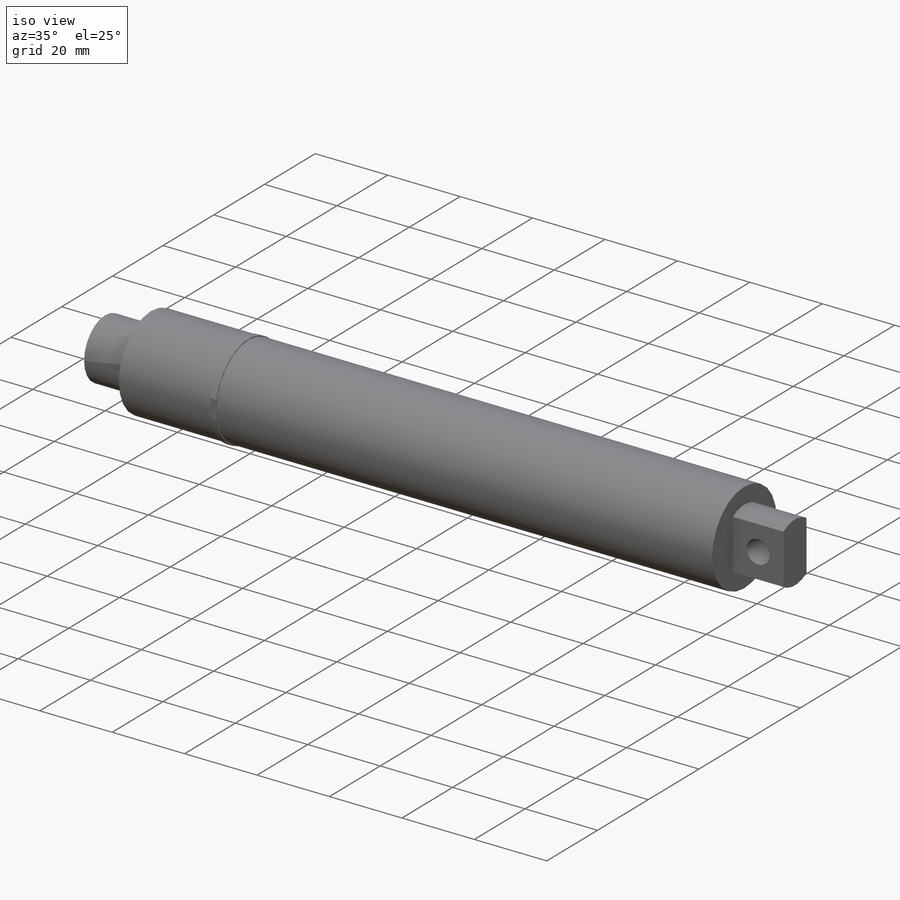
[diagram: iso view]
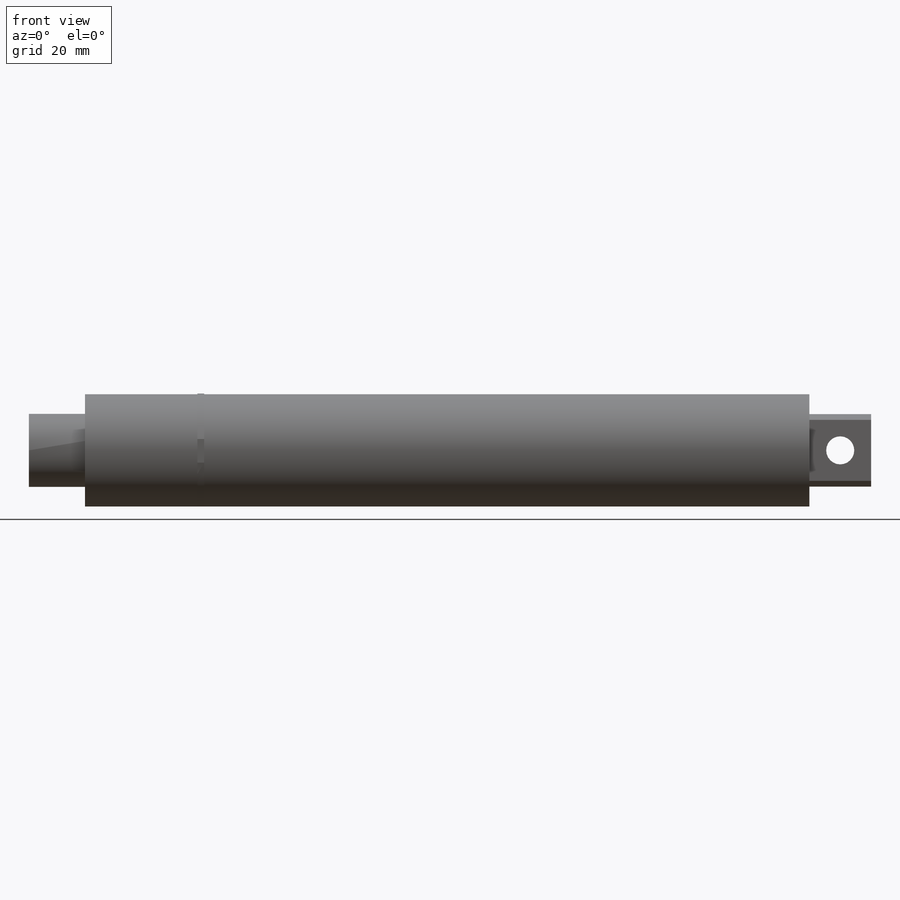
[diagram: front view]
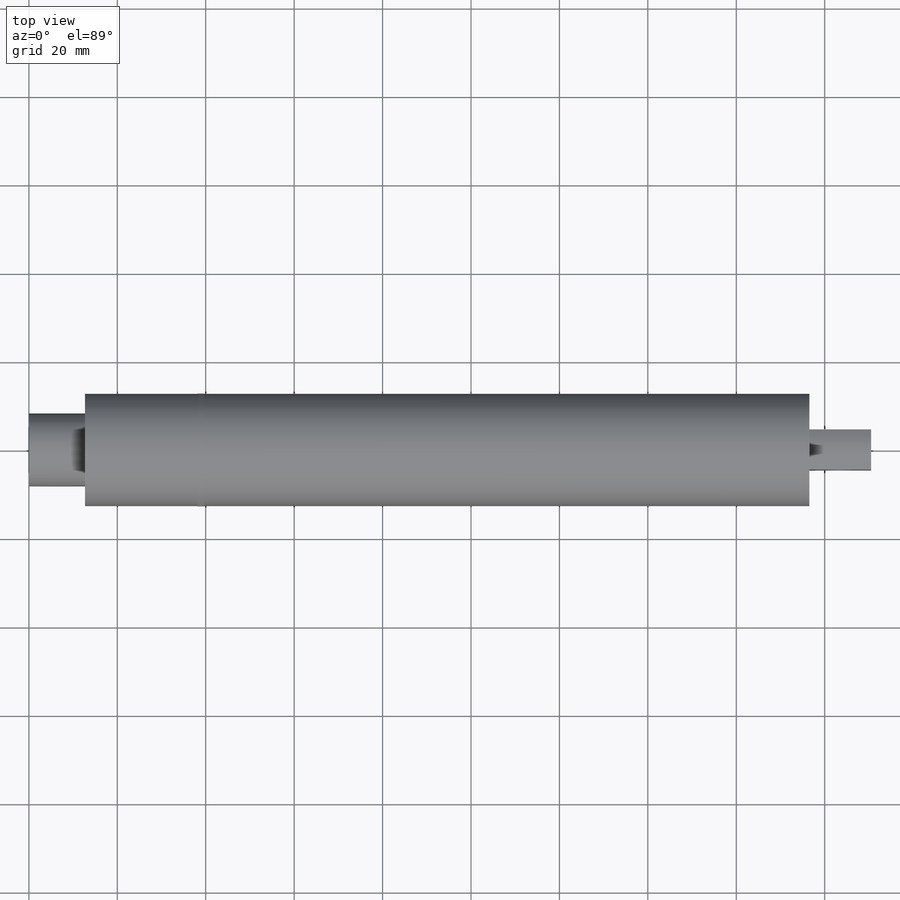
[diagram: top view]
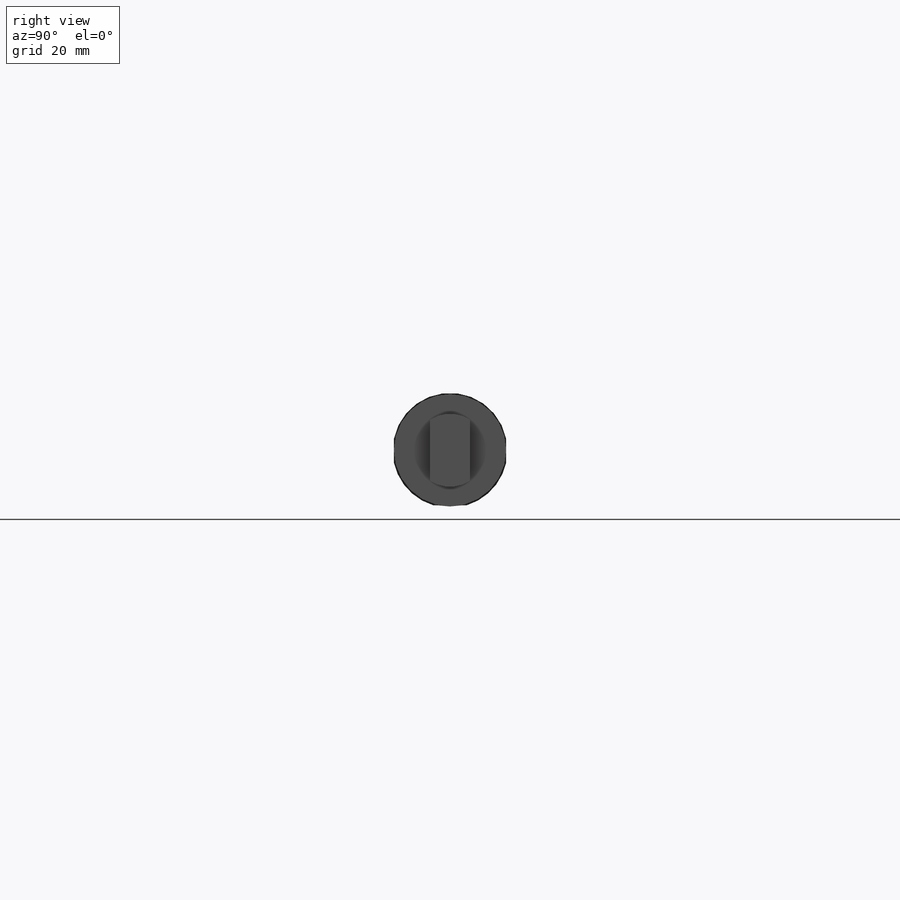
[diagram: right view]
SOLIDWORKS PART (.sldprt)
format: sldprt  version: not decoded by parser v0  size: 236,032 bytes
history: native  units: mm
features: sketch x10, cut_extrude x8, plane x5, extrude x2, material x1 (+8 scaffold rows collapsed)
feature tree (34):
  scaffold x8  (default folders/planes/origin — collapsed)
  material  "Material <sin especificar>"
  plane  "Alzado"
  plane  "Planta"
  plane  "Vista lateral"
  sketch  "Croquis2"  dims[D1=25.4mm]
  extrude  "Saliente-Extruir1"  Depth=190.5mm
  sketch  "Croquis3"  dims[D1=16.51mm D2=25.4mm]
  cut_extrude  "Cortar-Extruir1"  Depth=12.7mm
  sketch  "Croquis4"  dims[D1=5.08mm]
  cut_extrude  "Cortar-Extruir2"  Depth=170.18mm
  plane  "Plano1"  Offset=2.54mm
  sketch  "Croquis6"  dims[D1=25.4mm D2=16.51mm]
  cut_extrude  "Cortar-Extruir6"  Depth=16.51mm
  plane  "Plano2"  Offset=2.54mm
  sketch  "Croquis8"
  cut_extrude  "Cortar-Extruir8"  Depth=16.51mm
  sketch  "Croquis9"  dims[D1=6.35mm]
  cut_extrude  "Cortar-Extruir9"  Depth=16.51mm
  sketch  "Croquis10"  dims[D1=25.4mm]
  extrude  "Saliente-Extruir2"  Depth=12.7mm
  sketch  "Croquis12"
  cut_extrude  "Cortar-Extruir10"  Depth=64.262mm
  sketch  "Croquis13"
  cut_extrude  "Cortar-Extruir11"  Depth=64.262mm
  sketch  "Croquis14"
  cut_extrude  "Cortar-Extruir12"  Depth=64.262mm
decode coverage: 16 of 20 modeling features carry decoded parameters
note: suppression state not decoded; provenance and decode notes live in map.json
